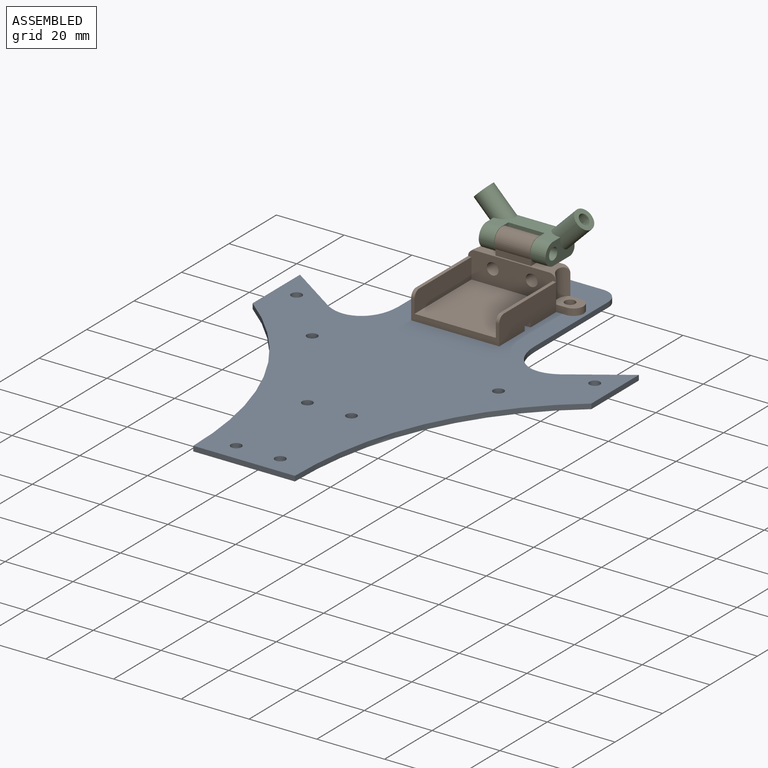
[diagram: assembled view]
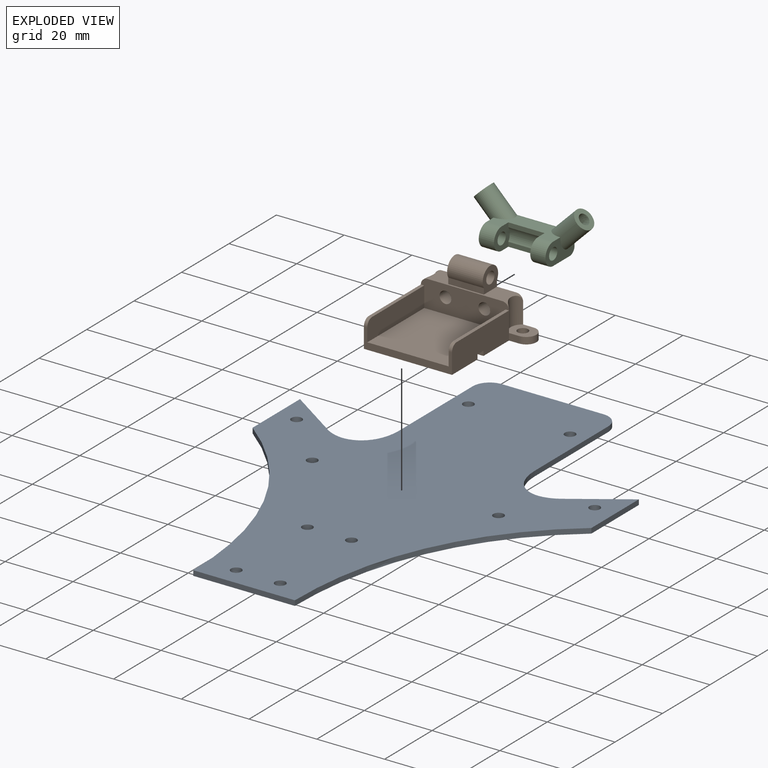
[diagram: exploded view]
GUIDED TOUR — MATED ASSEMBLY (Onshape document 57d7acd1b79d2c10b7ef557a, AutoMate assembly 57d7acd1b79d2c10b7ef557a_911b62f9be4d0cfd3e27a146_4deda6f430c3d6857817da89_default)

This assembly has 3 components, labeled P0..P2 below (a component is one placed occurrence of a part; the same part can appear more than once), held together by 2 mates. A mate is a constraint between two components; its type names the relative motion it leaves free:
  FASTENED — locks the two components together rigidly (no relative motion),
  REVOLUTE — leaves rotation about the listed axis free (a hinge).
Axis/direction vectors are unit vectors and 'through' points are millimeter coordinates, both in the assembly's world frame.

MATES
  1. FASTENED "Fastened 1": P1 <-> P0, direction (0.000, 0.000, -1.000) through (15.00, 51.00, 1.50) mm
  2. REVOLUTE "Revolute 1": P2 <-> P1, axis (1.000, 0.000, 0.000) through (-5.35, 51.25, 14.95) mm

ASSEMBLY ORDER
  1. P2 — the base component [order verified]
  2. P1 [order verified]
  3. P0 [order verified]
Order-tag legend:
  [order verified] — this step's position reverses a verified removal order: the component was checked to insert without passing through the ones already placed.

Of the 3 components, 1 carries the full construction recipe — the FeatureScript program that regenerates the part's solid from scratch; the rest are supplied as boundary geometry only.
Each toured component is shown spotlighted twice — in the assembled view, then in the exploded view, where a leader line traces a displaced component back to its assembled socket (saturated green if recipe-attached, orange if geometry-only; every other component desaturated gray) — followed by its recipe or geometry summary and the mates that hold it.
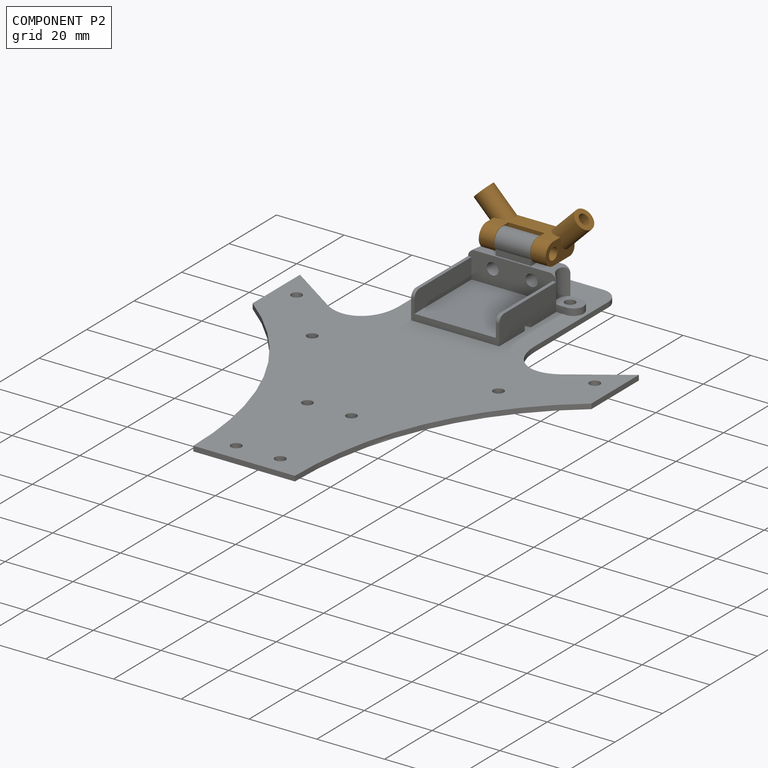
[diagram: component P2 — assembled]
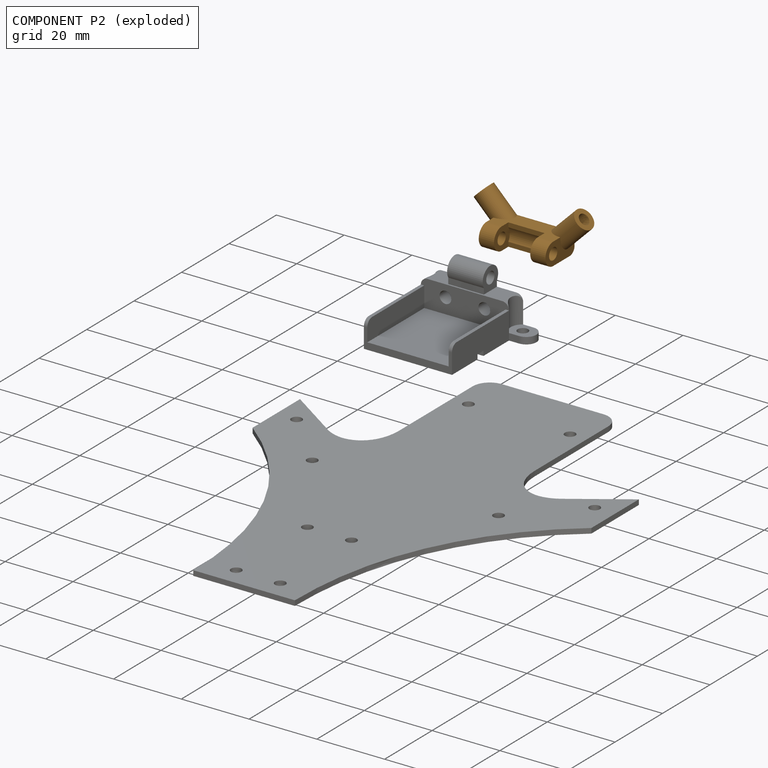
[diagram: component P2 — exploded]
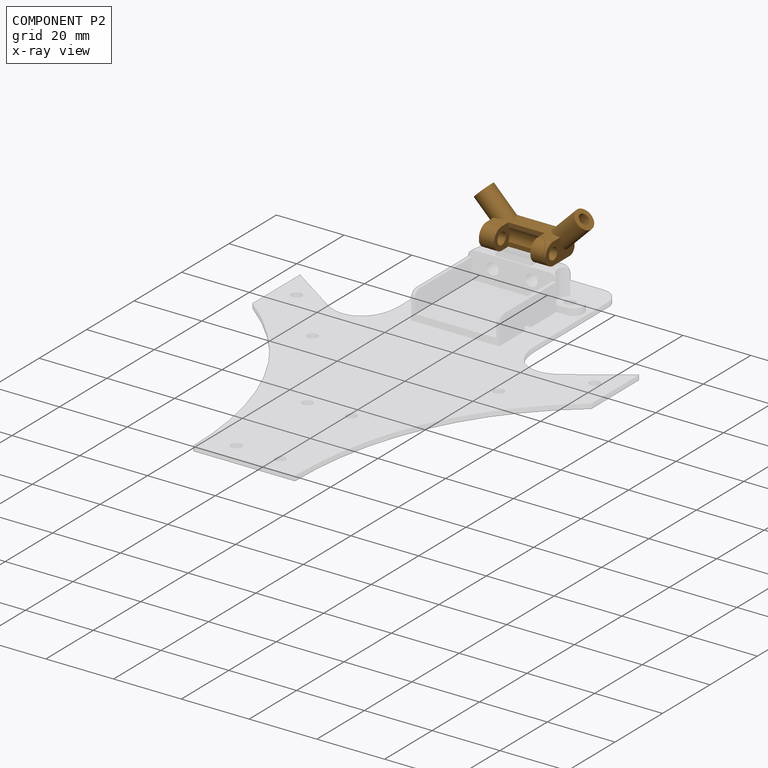
[diagram: component P2 — x-ray view]
COMPONENT P2 — geometry summary (no construction recipe available for this part):
  bounding box: 33.9 x 13.6 x 12.3 mm
  B-rep topology: 1 solid, 24 faces, 142 edges
  volume: 1215 mm^3 (22% of its bounding box)
  symmetry: mirror-symmetric across its x mid-plane
Held by: REVOLUTE mate "Revolute 1" to P1.
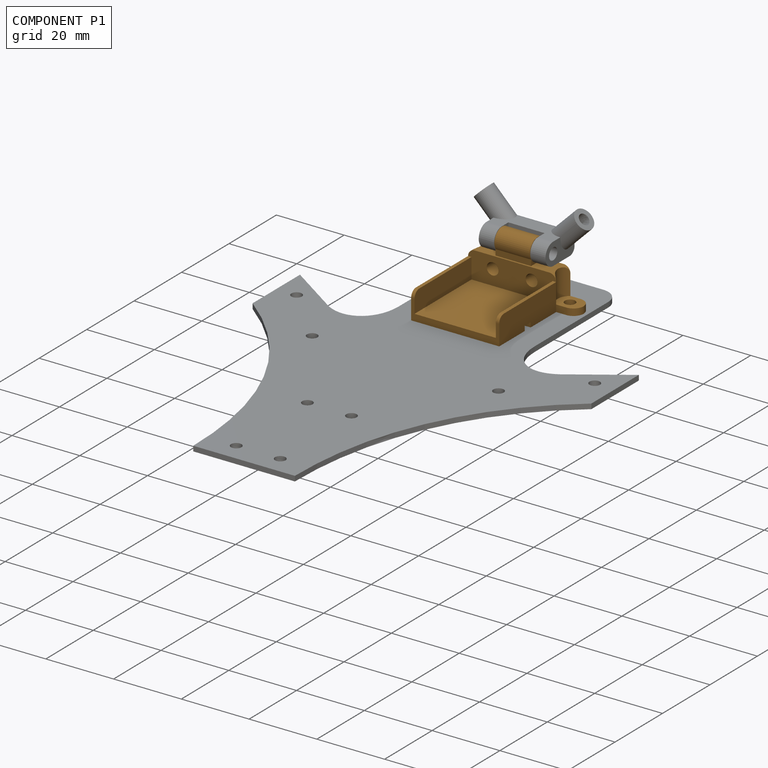
[diagram: component P1 — assembled]
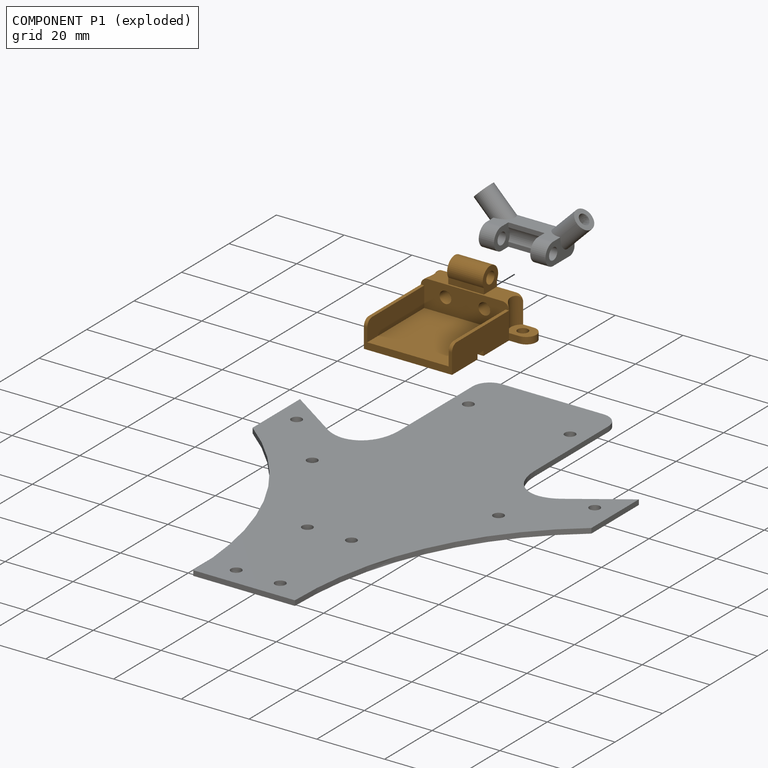
[diagram: component P1 — exploded]
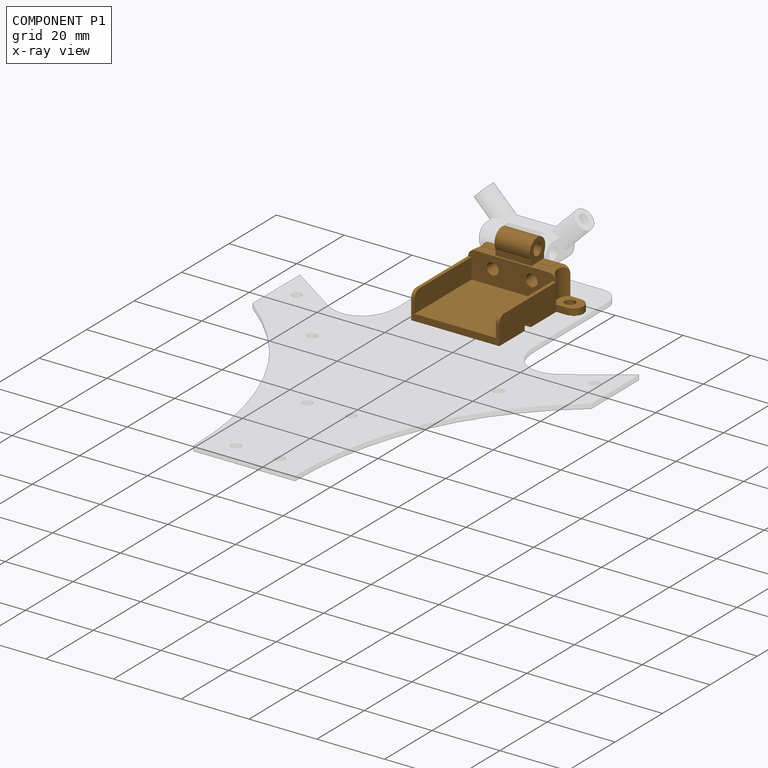
[diagram: component P1 — x-ray view]
COMPONENT P1 — geometry summary (no construction recipe available for this part):
  bounding box: 38.0 x 30.5 x 16.7 mm
  B-rep topology: 1 solid, 39 faces, 218 edges
  volume: 3162 mm^3 (16% of its bounding box)
  symmetry: mirror-symmetric across its x mid-plane
Held by: FASTENED mate "Fastened 1" to P0; REVOLUTE mate "Revolute 1" to P2.
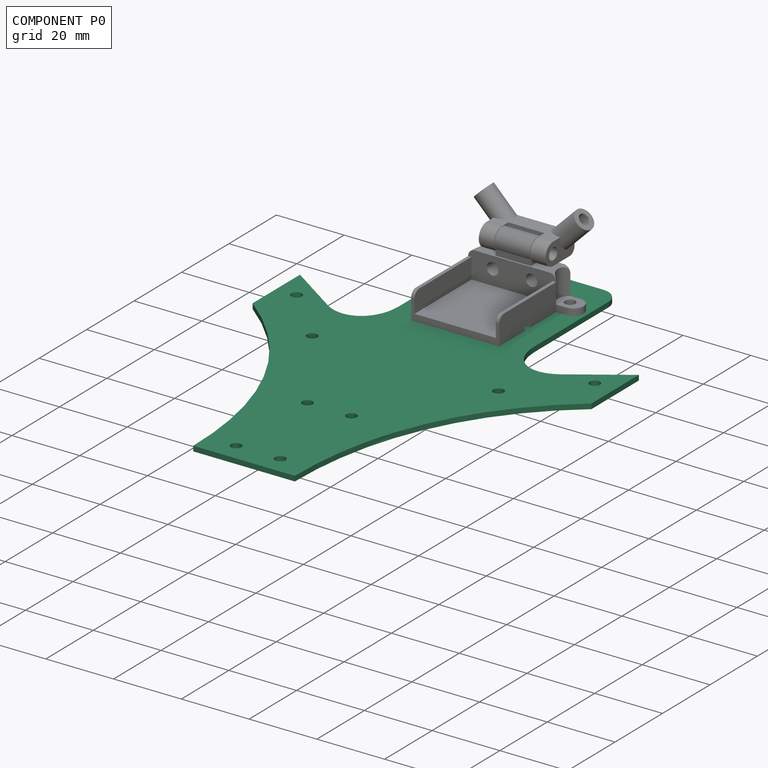
[diagram: component P0 — assembled]
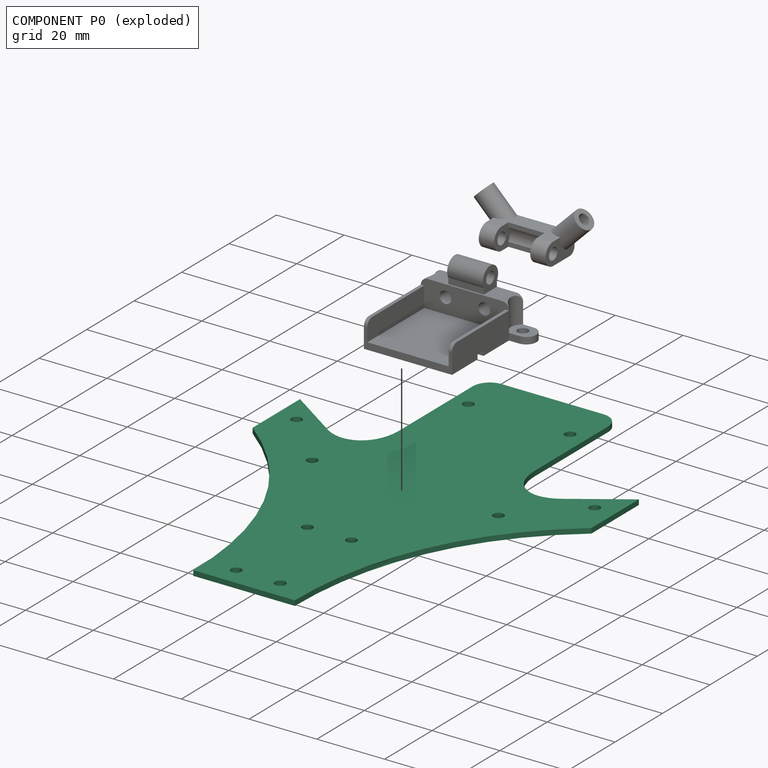
[diagram: component P0 — exploded]
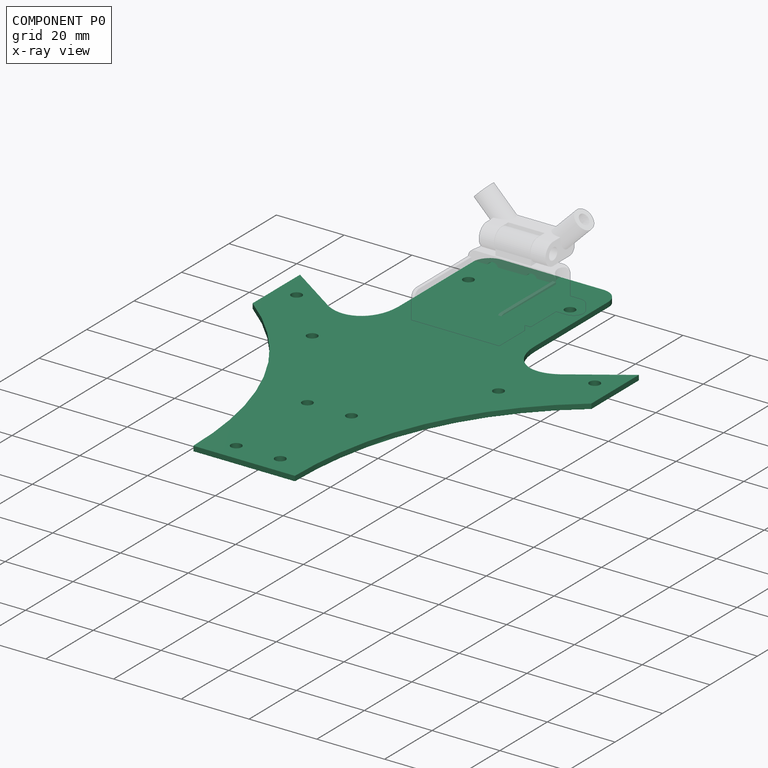
[diagram: component P0 — x-ray view]
COMPONENT P0 — recipe-attached (CADFS 00242426, mesh-verified: the recipe's output STEP matches this component's geometry to below the mesh-comparison resolution (tessellation chordal tolerance ~0.246 mm)).
Held by: FASTENED mate "Fastened 1" to P1.
Construction recipe (FeatureScript — the CAD program that rebuilds this solid; sketch coordinates are in the units given by the * unit suffixes, e.g. mm):

FeatureScript 2522;
import(path : "onshape/std/geometry.fs", version : "2522.0");
import(path : "onshape/std/common.fs", version : "2522.0");
const mm = millimeter;
const VERTEX = EntityType.VERTEX;
const EDGE = EntityType.EDGE;
const FACE = EntityType.FACE;
const BODY = EntityType.BODY;
function v(x, y){return vector(x, y);}
function OD(order){return orderDisambiguation(order);}
function OSD(set){return originalSetDisambiguation(set);}
function TD(topology){return topologyDisambiguation(topology);}
function TDD(query){return trueDependencyDisambiguation(query);}
function sQuery(a, b, c) {return sketchEntityQuery(a, b, c);}

annotation { "Feature Type Name" : "Feature", "Feature Type Description" : "" }
export const myFeature = defineFeature(function(context is Context, id is Id, definition is map)
    precondition{}
    {
        {
            var Q0;
            Q0=qCreatedBy(makeId("Top.planeOp"),FACE);
            var sketch = newSketch(context, id + "F0", { "sketchPlane" : qUnion([Q0])});
            skLineSegment(sketch, "E0", {"start": v(50.03, 65) * mm, "end": v(-50.03, -65) * mm, "construction": true});
            skSolve(sketch);
        }
        {
            var Q0;
            Q0=qCreatedBy(makeId("Top.planeOp"),FACE);
            var sketch = newSketch(context, id + "F1", { "sketchPlane" : qUnion([Q0])});
            skLineSegment(sketch, "E1", {"start": v(0, 65) * mm, "end": v(-15, 65) * mm});
            skLineSegment(sketch, "E2", {"start": v(-20, 60) * mm, "end": v(-20, 29) * mm});
            skLineSegment(sketch, "E3", {"start": v(-34.25, 19.38) * mm, "end": v(-50, 30) * mm});
            skLineSegment(sketch, "E4", {"start": v(-50, 30) * mm, "end": v(-50, 10) * mm});
            skLineSegment(sketch, "E5", {"start": v(-15, -65) * mm, "end": v(0, -65) * mm});
            skFitSpline(sketch, "E6", {"points": [v(-20, 29) * mm, v(-34.25, 19.38) * mm], "startDerivative": vector(0, -28.2) * mm, "endDerivative": vector(-21.27, 13.01) * mm});
            skFitSpline(sketch, "E7", {"points": [v(-50, 10) * mm, v(-15, -65) * mm], "startDerivative": vector(61.4, -47.18) * mm, "endDerivative": vector(0, -103.13) * mm});
            skLineSegment(sketch, "E8", {"start": v(0, 65) * mm, "end": v(0, -65) * mm, "construction": true});
            skCircle(sketch, "E9", {"center": v(-6.5, -59) * mm, "radius": 1.55 * mm});
            skCircle(sketch, "E10", {"center": v(-27.5, 3) * mm, "radius": 1.55 * mm});
            skCircle(sketch, "E11", {"center": v(-44, 20) * mm, "radius": 1.55 * mm});
            skCircle(sketch, "E12", {"center": v(-15, 51) * mm, "radius": 1.55 * mm});
            skCircle(sketch, "E13", {"center": v(-6.5, -29) * mm, "radius": 1.55 * mm});
            skPoint(sketch, "E14.visualSharp", {"position": v(-20, 65) * mm});
            skArc(sketch, "E14.filletArc", {"start": v(-15, 65) * mm, "mid": v(-18.54, 63.54) * mm, "end": v(-20, 60) * mm});
            skLineSegment(sketch, "E15.MirrorCS", {"start": v(0, 65) * mm, "end": v(15, 65) * mm});
            skArc(sketch, "E16.MirrorCS", {"start": v(15, 65) * mm, "mid": v(18.54, 63.54) * mm, "end": v(20, 60) * mm});
            skCircle(sketch, "E17.MirrorC", {"center": v(15, 51) * mm, "radius": 1.55 * mm});
            skLineSegment(sketch, "E18.MirrorCS", {"start": v(20, 60) * mm, "end": v(20, 29) * mm});
            skFitSpline(sketch, "E19.MirrorCS", {"points": [v(20, 29) * mm, v(34.25, 19.38) * mm], "startDerivative": vector(0, -28.2) * mm, "endDerivative": vector(21.27, 13.01) * mm});
            skLineSegment(sketch, "E20.MirrorCS", {"start": v(34.25, 19.38) * mm, "end": v(50, 30) * mm});
            skLineSegment(sketch, "E21.MirrorCS", {"start": v(50, 30) * mm, "end": v(50, 10) * mm});
            skFitSpline(sketch, "E22.MirrorCS", {"points": [v(50, 10) * mm, v(15, -65) * mm], "startDerivative": vector(-61.4, -47.18) * mm, "endDerivative": vector(0, -103.13) * mm});
            skCircle(sketch, "E23.MirrorC", {"center": v(44, 20) * mm, "radius": 1.55 * mm});
            skCircle(sketch, "E24.MirrorC", {"center": v(27.5, 3) * mm, "radius": 1.55 * mm});
            skCircle(sketch, "E25.MirrorC", {"center": v(6.5, -29) * mm, "radius": 1.55 * mm});
            skCircle(sketch, "E26.MirrorC", {"center": v(6.5, -59) * mm, "radius": 1.55 * mm});
            skLineSegment(sketch, "E27.MirrorCS", {"start": v(15, -65) * mm, "end": v(0, -65) * mm});
            skSolve(sketch);
        }
        {
            var Q0;
            Q0=makeQuery(id+"F1.imprint","IMPRINT",FACE,{"disambiguationData":[TD([[makeQuery(id+"F1.imprint","IMPRINT",EDGE,{"derivedFrom":sQuery(id+"F1.wireOp",EDGE,"E1")}),1.0]])]});
            extrude(context, id + "F2", {"entities" : qUnion([Q0]), "depth" : 1.5 * mm, "offsetDistance" : 25 * mm});
        }
    });
PROVENANCE & LICENSES
Assembly (occurrences, transforms, mates, per-part STEP geometry): AutoMate dataset, Zenodo record 7776208, CC0.
Construction recipes: CADFS (HuggingFace VladPyatov/CADFS, CC-BY-4.0, layered over the ABC dataset), FeatureScript reconstruction programs keyed by ABC model id.
Join: ABC meta listings map ABC model id -> Onshape documentId; within a shared document, parts are matched by geometric signature (bounding-box dims + volume at 0.1% relative tolerance, exact B-rep face/solid counts).
Verification: 1 of this assembly's 3 components carries a recipe attachment, and every attachment is mesh-verified: the CADFS STEP and the AutoMate member STEP were compared as meshes in their shared local frame (symmetric sampled-point-to-mesh distance); worst across the 1 attachment: below the mesh-comparison resolution (tessellation chordal tolerance ~0.246 mm) on a 164 mm part.
Renders: orthographic iso camera (az 35 / el 25); the floor grid conveys scale (grid pitch printed in each image; no ruler). In the exploded view each component is displaced by its stored offset vector: the offsets alone carry the explosion direction (mate normal/axis signs are not orientation cues and do not encode it), and separation distances are assigned per mate-chain, not proportionally to assembly-order depth.
